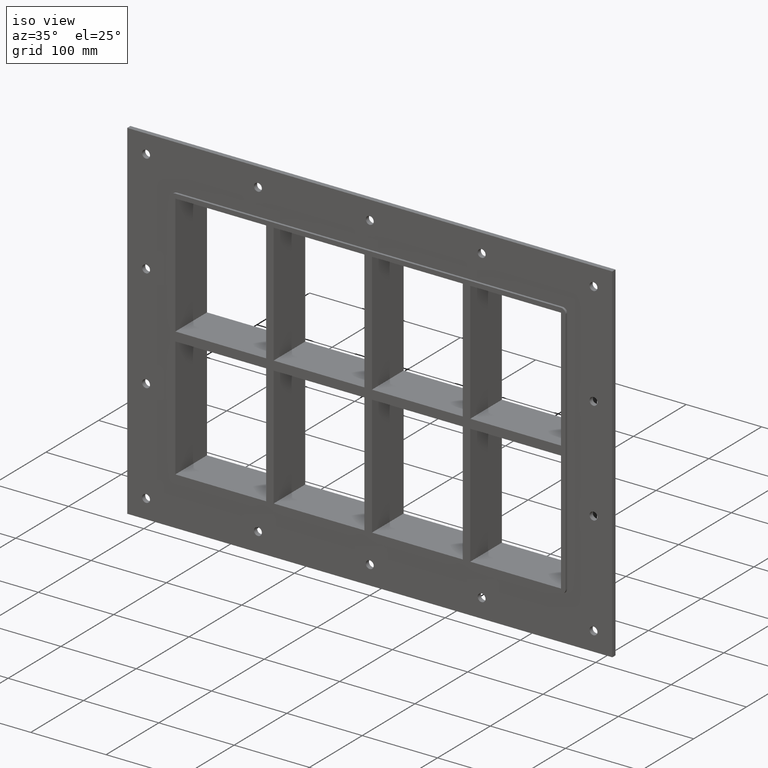
[diagram: clean part render]
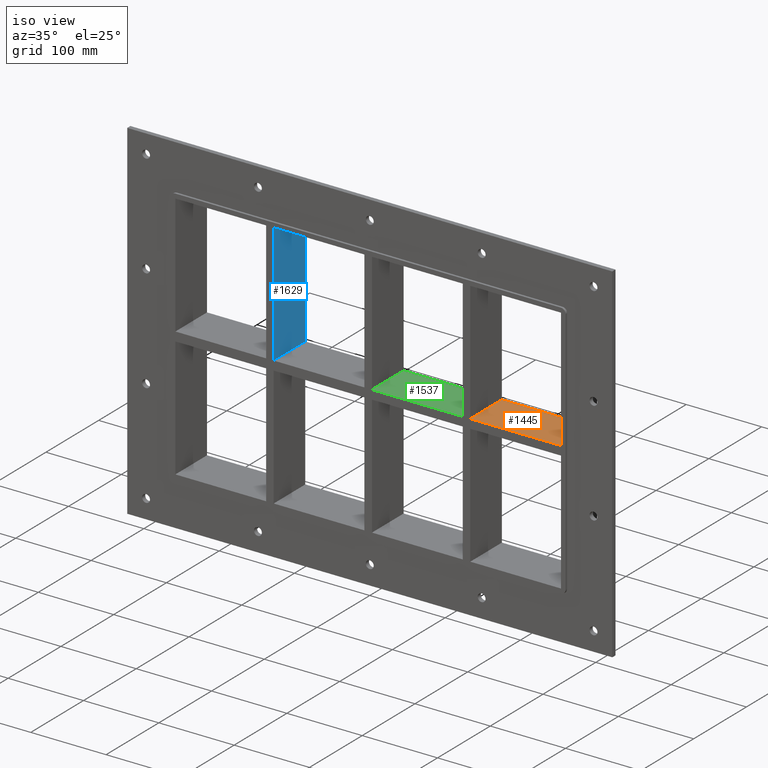
[diagram: same view with three faces highlighted in distinct colors, each labeled with its STEP entity id]
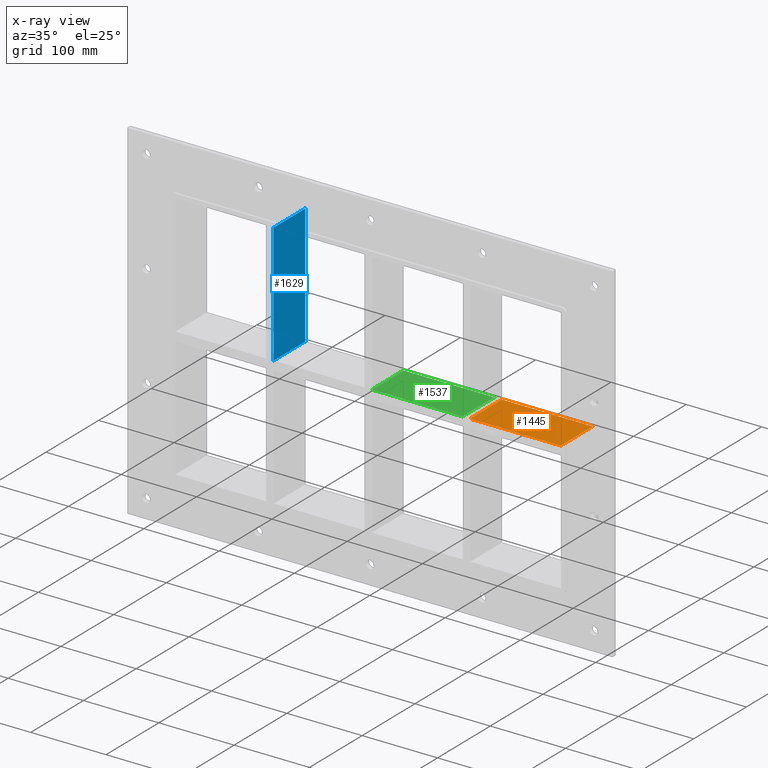
[diagram: x-ray of the same camera — body ghosted, the three highlighted faces saturated]
A machine part, iso view with three faces highlighted in distinct colors.
The next image is the same camera in x-ray (body ghosted, the three faces saturated) — at least one of them is partly hidden behind the body in this view.
Their STEP definitions:

[orange] entity #1445 — the highlighted planar face has unit normal (0, 0, 1).
#545=CARTESIAN_POINT('',(135.50000000000728,57.0,5.999999999999943));
#546=VERTEX_POINT('',#545);
#547=CARTESIAN_POINT('',(135.50000000000728,-3.0,5.999999999999943));
#548=VERTEX_POINT('',#547);
#549=CARTESIAN_POINT('',(135.50000000000728,57.0,5.999999999999943));
#550=DIRECTION('',(0.0,-1.0,0.0));
#551=VECTOR('',#550,60.0);
#552=LINE('',#549,#551);
#553=EDGE_CURVE('',#546,#548,#552,.T.);
#1018=CARTESIAN_POINT('',(256.00000000000017,-3.0,5.999999999999943));
#1019=VERTEX_POINT('',#1018);
#1026=CARTESIAN_POINT('',(135.50000000000728,-3.0,5.999999999999943));
#1027=DIRECTION('',(1.0,0.0,0.0));
#1028=VECTOR('',#1027,120.49999999999284);
#1029=LINE('',#1026,#1028);
#1030=EDGE_CURVE('',#548,#1019,#1029,.T.);
#1255=CARTESIAN_POINT('',(256.00000000000011,57.0,5.999999999999943));
#1256=VERTEX_POINT('',#1255);
#1257=CARTESIAN_POINT('',(135.50000000000728,57.0,5.999999999999943));
#1258=DIRECTION('',(1.0,0.0,0.0));
#1259=VECTOR('',#1258,120.49999999999284);
#1260=LINE('',#1257,#1259);
#1261=EDGE_CURVE('',#546,#1256,#1260,.T.);
#1429=CARTESIAN_POINT('',(-256.00000000000045,-3.0,5.999999999999943));
#1430=DIRECTION('',(0.0,0.0,1.0));
#1431=DIRECTION('',(1.0,0.0,0.0));
#1432=AXIS2_PLACEMENT_3D('',#1429,#1430,#1431);
#1433=PLANE('',#1432);
#1434=ORIENTED_EDGE('',*,*,#553,.T.);
#1435=ORIENTED_EDGE('',*,*,#1030,.T.);
#1436=CARTESIAN_POINT('',(256.00000000000011,57.000000000000007,5.999999999999943));
#1437=DIRECTION('',(0.0,-1.0,0.0));
#1438=VECTOR('',#1437,60.000000000000007);
#1439=LINE('',#1436,#1438);
#1440=EDGE_CURVE('',#1256,#1019,#1439,.T.);
#1441=ORIENTED_EDGE('',*,*,#1440,.F.);
#1442=ORIENTED_EDGE('',*,*,#1261,.F.);
#1443=EDGE_LOOP('',(#1434,#1435,#1441,#1442));
#1444=FACE_OUTER_BOUND('',#1443,.T.);
#1445=ADVANCED_FACE('',(#1444),#1433,.T.);

[blue] entity #1629 — the highlighted planar face has unit normal (1, 0, 0).
#984=CARTESIAN_POINT('',(-125.49999999999272,-3.0,5.999999999999943));
#985=VERTEX_POINT('',#984);
#992=CARTESIAN_POINT('',(-125.49999999999272,-3.0,165.50000000000006));
#993=VERTEX_POINT('',#992);
#994=CARTESIAN_POINT('',(-125.49999999999272,-3.0,165.50000000000006));
#995=DIRECTION('',(0.0,0.0,-1.0));
#996=VECTOR('',#995,159.50000000000011);
#997=LINE('',#994,#996);
#998=EDGE_CURVE('',#993,#985,#997,.T.);
#1387=CARTESIAN_POINT('',(-125.49999999999272,57.0,165.50000000000006));
#1388=VERTEX_POINT('',#1387);
#1395=CARTESIAN_POINT('',(-125.49999999999272,57.0,5.999999999999943));
#1396=VERTEX_POINT('',#1395);
#1397=CARTESIAN_POINT('',(-125.49999999999272,57.0,165.50000000000006));
#1398=DIRECTION('',(0.0,0.0,-1.0));
#1399=VECTOR('',#1398,159.50000000000011);
#1400=LINE('',#1397,#1399);
#1401=EDGE_CURVE('',#1388,#1396,#1400,.T.);
#1419=CARTESIAN_POINT('',(-125.49999999999272,-3.0,5.999999999999943));
#1420=DIRECTION('',(0.0,1.0,0.0));
#1421=VECTOR('',#1420,60.0);
#1422=LINE('',#1419,#1421);
#1423=EDGE_CURVE('',#985,#1396,#1422,.T.);
#1453=CARTESIAN_POINT('',(-125.49999999999272,-3.0,165.5));
#1454=DIRECTION('',(0.0,1.0,0.0));
#1455=VECTOR('',#1454,60.000000000000007);
#1456=LINE('',#1453,#1455);
#1457=EDGE_CURVE('',#993,#1388,#1456,.T.);
#1618=CARTESIAN_POINT('',(-125.49999999999272,-3.0,165.50000000000006));
#1619=DIRECTION('',(1.0,0.0,0.0));
#1620=DIRECTION('',(0.0,0.0,-1.0));
#1621=AXIS2_PLACEMENT_3D('',#1618,#1619,#1620);
#1622=PLANE('',#1621);
#1623=ORIENTED_EDGE('',*,*,#1423,.T.);
#1624=ORIENTED_EDGE('',*,*,#1401,.F.);
#1625=ORIENTED_EDGE('',*,*,#1457,.F.);
#1626=ORIENTED_EDGE('',*,*,#998,.T.);
#1627=EDGE_LOOP('',(#1623,#1624,#1625,#1626));
#1628=FACE_OUTER_BOUND('',#1627,.T.);
#1629=ADVANCED_FACE('',(#1628),#1622,.T.);

[green] entity #1537 — the highlighted planar face has unit normal (0, 0, 1).
#465=CARTESIAN_POINT('',(125.49999999999793,-3.0,5.999999999999943));
#466=VERTEX_POINT('',#465);
#467=CARTESIAN_POINT('',(125.49999999999793,57.0,5.999999999999943));
#468=VERTEX_POINT('',#467);
#469=CARTESIAN_POINT('',(125.49999999999795,-3.0,5.999999999999943));
#470=DIRECTION('',(0.0,1.0,0.0));
#471=VECTOR('',#470,60.0);
#472=LINE('',#469,#471);
#473=EDGE_CURVE('',#466,#468,#472,.T.);
#705=CARTESIAN_POINT('',(5.000000000007283,57.0,5.999999999999943));
#706=VERTEX_POINT('',#705);
#707=CARTESIAN_POINT('',(5.000000000007283,-3.0,5.999999999999943));
#708=VERTEX_POINT('',#707);
#709=CARTESIAN_POINT('',(5.000000000007283,57.0,5.999999999999943));
#710=DIRECTION('',(0.0,-1.0,0.0));
#711=VECTOR('',#710,60.0);
#712=LINE('',#709,#711);
#713=EDGE_CURVE('',#706,#708,#712,.T.);
#950=CARTESIAN_POINT('',(5.000000000007276,-3.0,5.999999999999943));
#951=DIRECTION('',(1.0,0.0,0.0));
#952=VECTOR('',#951,120.49999999999068);
#953=LINE('',#950,#952);
#954=EDGE_CURVE('',#708,#466,#953,.T.);
#1299=CARTESIAN_POINT('',(5.000000000007276,57.0,5.999999999999943));
#1300=DIRECTION('',(1.0,0.0,0.0));
#1301=VECTOR('',#1300,120.49999999999068);
#1302=LINE('',#1299,#1301);
#1303=EDGE_CURVE('',#706,#468,#1302,.T.);
#1526=CARTESIAN_POINT('',(-256.00000000000045,-3.0,5.999999999999943));
#1527=DIRECTION('',(0.0,0.0,1.0));
#1528=DIRECTION('',(1.0,0.0,0.0));
#1529=AXIS2_PLACEMENT_3D('',#1526,#1527,#1528);
#1530=PLANE('',#1529);
#1531=ORIENTED_EDGE('',*,*,#473,.T.);
#1532=ORIENTED_EDGE('',*,*,#1303,.F.);
#1533=ORIENTED_EDGE('',*,*,#713,.T.);
#1534=ORIENTED_EDGE('',*,*,#954,.T.);
#1535=EDGE_LOOP('',(#1531,#1532,#1533,#1534));
#1536=FACE_OUTER_BOUND('',#1535,.T.);
#1537=ADVANCED_FACE('',(#1536),#1530,.T.);